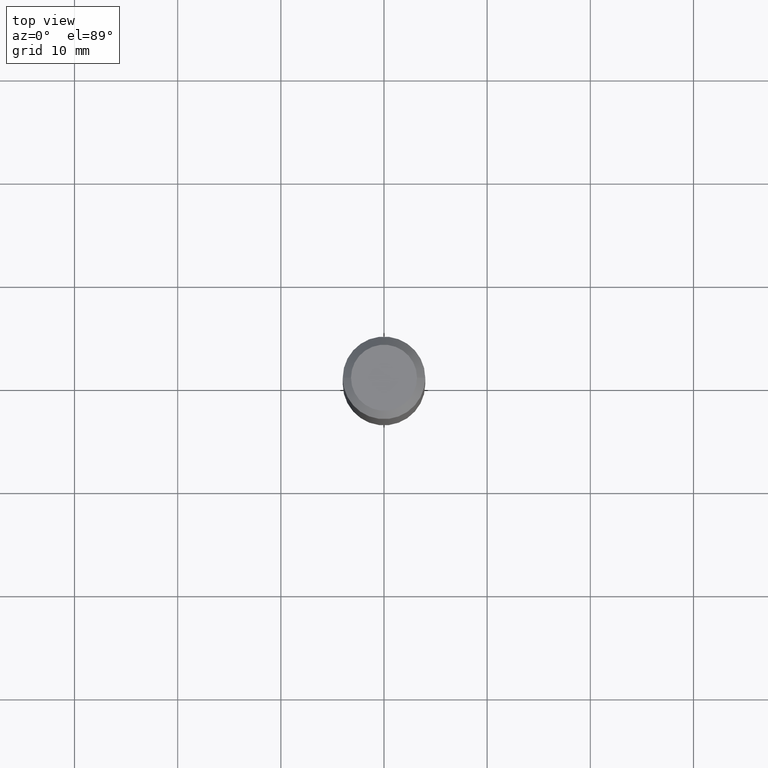
[diagram: clean part render]
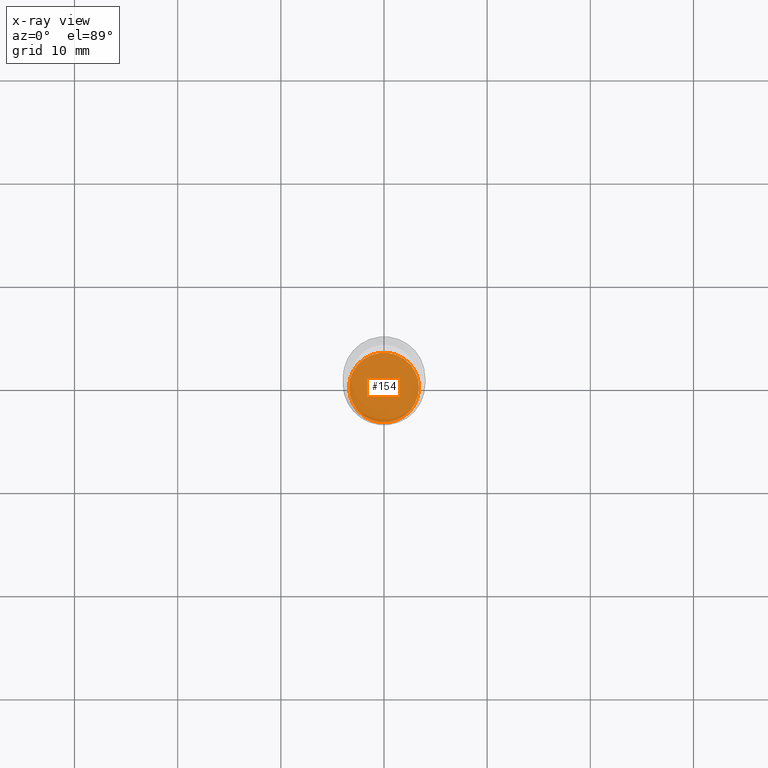
[diagram: x-ray — body ghosted, one internal face saturated and labeled with its STEP entity id]
A machine part, top view, then the same camera in x-ray: the body is ghosted and one INTERNAL B-rep face — a face not visible from any outside direction — is saturated and labeled: STEP entity #154.
In plain terms, the highlighted planar face has unit normal (-0, 0, 1).
Its self-contained STEP definition (entity closure, byte-faithful):
#2 = DIRECTION ( 'NONE',  ( 1.000000000000000000, -6.982962677686262766E-15, 0.000000000000000000 ) ) ;
#22 = VERTEX_POINT ( 'NONE', #448 ) ;
#30 = CARTESIAN_POINT ( 'NONE',  ( 5.352886669858645925E-29, -7.642503502593762035E-15, -2.188900000000000290 ) ) ;
#62 = CARTESIAN_POINT ( 'NONE',  ( 5.352886669858645925E-29, -7.642503502593762035E-15, -2.188900000000000290 ) ) ;
#80 = EDGE_CURVE ( 'NONE', #272, #22, #135, .T. ) ;
#98 = EDGE_LOOP ( 'NONE', ( #166, #375 ) ) ;
#101 = DIRECTION ( 'NONE',  ( -2.445468806185136597E-29, 3.491481338843145583E-15, 1.000000000000000000 ) ) ;
#135 = CIRCLE ( 'NONE', #423, 0.1333499999999999963 ) ;
#147 = CARTESIAN_POINT ( 'NONE',  ( 0.1333499999999999963, -8.573681575663225959E-15, -2.188900000000000290 ) ) ;
#151 = CIRCLE ( 'NONE', #446, 0.1333499999999999963 ) ;
#154 = ADVANCED_FACE ( 'NONE', ( #214 ), #451, .F. ) ;
#166 = ORIENTED_EDGE ( 'NONE', *, *, #80, .F. ) ;
#176 = DIRECTION ( 'NONE',  ( 1.000000000000000000, -6.982962677686265922E-15, 4.876176775795935793E-29 ) ) ;
#187 = DIRECTION ( 'NONE',  ( -2.445468806185136597E-29, 3.491481338843145583E-15, 1.000000000000000000 ) ) ;
#207 = EDGE_CURVE ( 'NONE', #22, #272, #151, .T. ) ;
#214 = FACE_OUTER_BOUND ( 'NONE', #98, .T. ) ;
#253 = DIRECTION ( 'NONE',  ( -2.438088387897960049E-29, 3.491481338843145188E-15, 1.000000000000000000 ) ) ;
#272 = VERTEX_POINT ( 'NONE', #147 ) ;
#338 = DIRECTION ( 'NONE',  ( 1.000000000000000000, -6.982962677686262766E-15, 0.000000000000000000 ) ) ;
#375 = ORIENTED_EDGE ( 'NONE', *, *, #207, .F. ) ;
#423 = AXIS2_PLACEMENT_3D ( 'NONE', #62, #101, #338 ) ;
#446 = AXIS2_PLACEMENT_3D ( 'NONE', #30, #187, #2 ) ;
#448 = CARTESIAN_POINT ( 'NONE',  ( -0.1333499999999999963, -6.692345537283558248E-15, -2.188900000000000290 ) ) ;
#451 = PLANE ( 'NONE',  #480 ) ;
#462 = CARTESIAN_POINT ( 'NONE',  ( 2.221554407371537942E-29, -1.212674952683951020E-14, -2.188900000000000290 ) ) ;
#480 = AXIS2_PLACEMENT_3D ( 'NONE', #462, #253, #176 ) ;